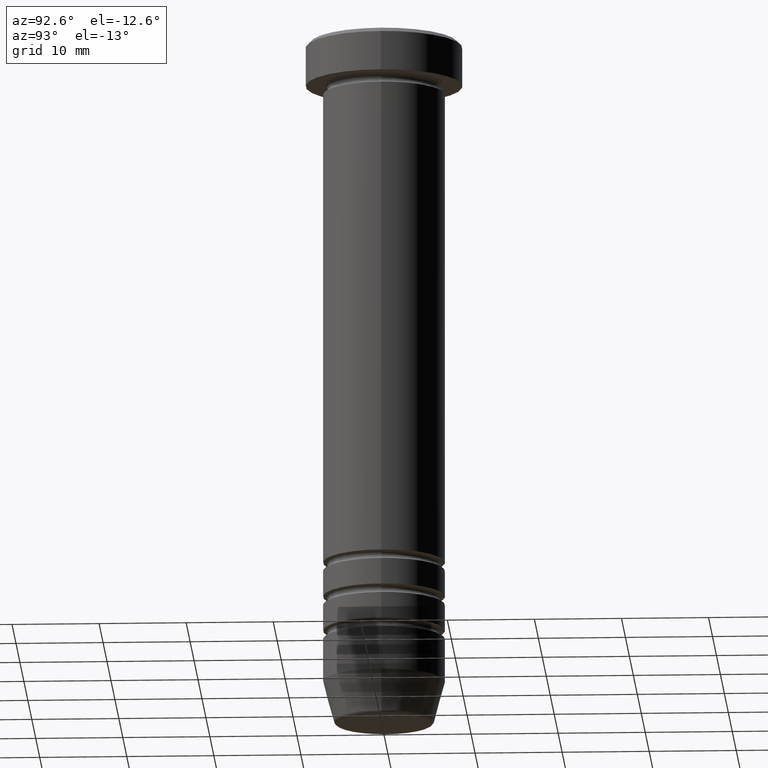
[diagram: clean part render]
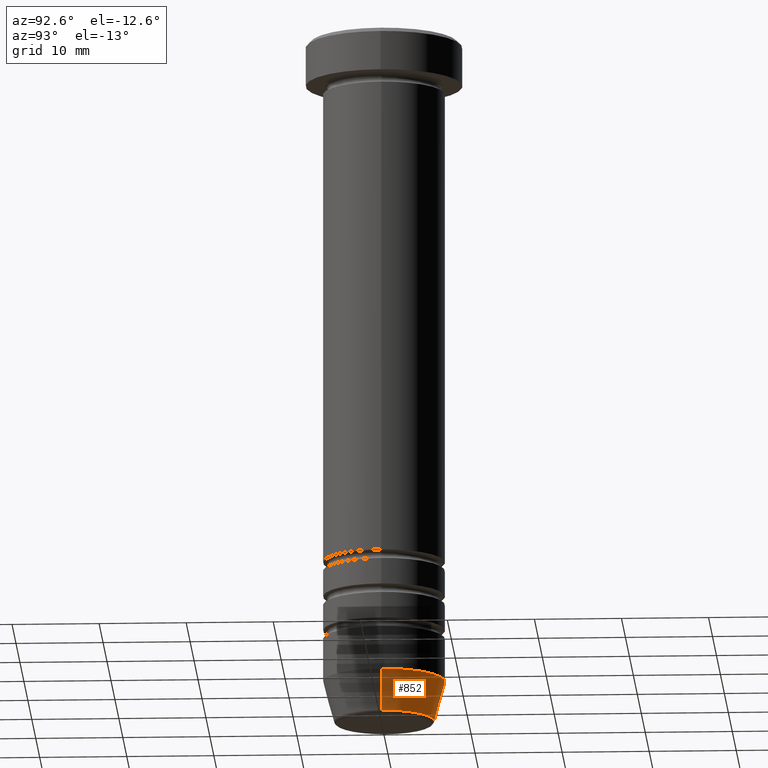
[diagram: same view with one face highlighted and labeled with its STEP entity id]
A machine part, auxiliary view. The second image highlights one B-rep face of the part: STEP entity #852.
In plain terms, the highlighted conical surface has half-angle 15 deg.
Its self-contained STEP definition (entity closure, byte-faithful):
#10 = LINE ( 'NONE', #997, #271 ) ;
#99 = EDGE_LOOP ( 'NONE', ( #191, #369, #308, #467 ) ) ;
#111 = CIRCLE ( 'NONE', #920, 5.759553456999433330 ) ;
#172 = CARTESIAN_POINT ( 'NONE',  ( 7.000000000000000000, 0.000000000000000000, -74.99999999999998579 ) ) ;
#191 = ORIENTED_EDGE ( 'NONE', *, *, #765, .T. ) ;
#192 = DIRECTION ( 'NONE',  ( 1.000000000000000000, 0.000000000000000000, 0.000000000000000000 ) ) ;
#201 = EDGE_CURVE ( 'NONE', #448, #956, #368, .T. ) ;
#220 = FACE_OUTER_BOUND ( 'NONE', #99, .T. ) ;
#271 = VECTOR ( 'NONE', #580, 1000.000000000000114 ) ;
#299 = CARTESIAN_POINT ( 'NONE',  ( 5.759553456999433330, 0.000000000000000000, -79.62940952255125637 ) ) ;
#308 = ORIENTED_EDGE ( 'NONE', *, *, #201, .F. ) ;
#342 = LINE ( 'NONE', #900, #902 ) ;
#354 = VERTEX_POINT ( 'NONE', #299 ) ;
#366 = CARTESIAN_POINT ( 'NONE',  ( -7.000000000000000000, 8.572527594031473190E-16, -74.99999999999998579 ) ) ;
#368 = CIRCLE ( 'NONE', #965, 7.000000000000000000 ) ;
#369 = ORIENTED_EDGE ( 'NONE', *, *, #671, .T. ) ;
#403 = CONICAL_SURFACE ( 'NONE', #1023, 5.660254037844381081, 0.2617993877991502405 ) ;
#414 = CARTESIAN_POINT ( 'NONE',  ( -5.759553456999433330, 7.812973149831951773E-16, -79.62940952255125637 ) ) ;
#448 = VERTEX_POINT ( 'NONE', #172 ) ;
#466 = DIRECTION ( 'NONE',  ( -0.000000000000000000, -0.000000000000000000, 1.000000000000000000 ) ) ;
#467 = ORIENTED_EDGE ( 'NONE', *, *, #595, .F. ) ;
#550 = CARTESIAN_POINT ( 'NONE',  ( 0.000000000000000000, 0.000000000000000000, -79.62940952255125637 ) ) ;
#580 = DIRECTION ( 'NONE',  ( -0.2588190451025214611, 3.169619151431774186E-17, 0.9659258262890679791 ) ) ;
#595 = EDGE_CURVE ( 'NONE', #354, #448, #342, .T. ) ;
#671 = EDGE_CURVE ( 'NONE', #722, #956, #10, .T. ) ;
#715 = DIRECTION ( 'NONE',  ( 1.000000000000000000, 0.000000000000000000, 0.000000000000000000 ) ) ;
#722 = VERTEX_POINT ( 'NONE', #414 ) ;
#765 = EDGE_CURVE ( 'NONE', #354, #722, #111, .T. ) ;
#852 = ADVANCED_FACE ( 'NONE', ( #220 ), #403, .T. ) ;
#876 = CARTESIAN_POINT ( 'NONE',  ( 0.000000000000000000, 0.000000000000000000, -79.99999999999998579 ) ) ;
#900 = CARTESIAN_POINT ( 'NONE',  ( 5.660254037844381081, 0.000000000000000000, -79.99999999999998579 ) ) ;
#902 = VECTOR ( 'NONE', #1002, 1000.000000000000114 ) ;
#920 = AXIS2_PLACEMENT_3D ( 'NONE', #550, #959, #1047 ) ;
#926 = DIRECTION ( 'NONE',  ( -0.000000000000000000, -0.000000000000000000, 1.000000000000000000 ) ) ;
#956 = VERTEX_POINT ( 'NONE', #366 ) ;
#959 = DIRECTION ( 'NONE',  ( -0.000000000000000000, -0.000000000000000000, 1.000000000000000000 ) ) ;
#965 = AXIS2_PLACEMENT_3D ( 'NONE', #1011, #926, #192 ) ;
#997 = CARTESIAN_POINT ( 'NONE',  ( -5.660254037844381081, 6.931811989807003364E-16, -79.99999999999998579 ) ) ;
#1002 = DIRECTION ( 'NONE',  ( 0.2588190451025214611, 0.000000000000000000, 0.9659258262890679791 ) ) ;
#1011 = CARTESIAN_POINT ( 'NONE',  ( 0.000000000000000000, 0.000000000000000000, -74.99999999999998579 ) ) ;
#1023 = AXIS2_PLACEMENT_3D ( 'NONE', #876, #466, #715 ) ;
#1047 = DIRECTION ( 'NONE',  ( -1.000000000000000000, 0.000000000000000000, 0.000000000000000000 ) ) ;